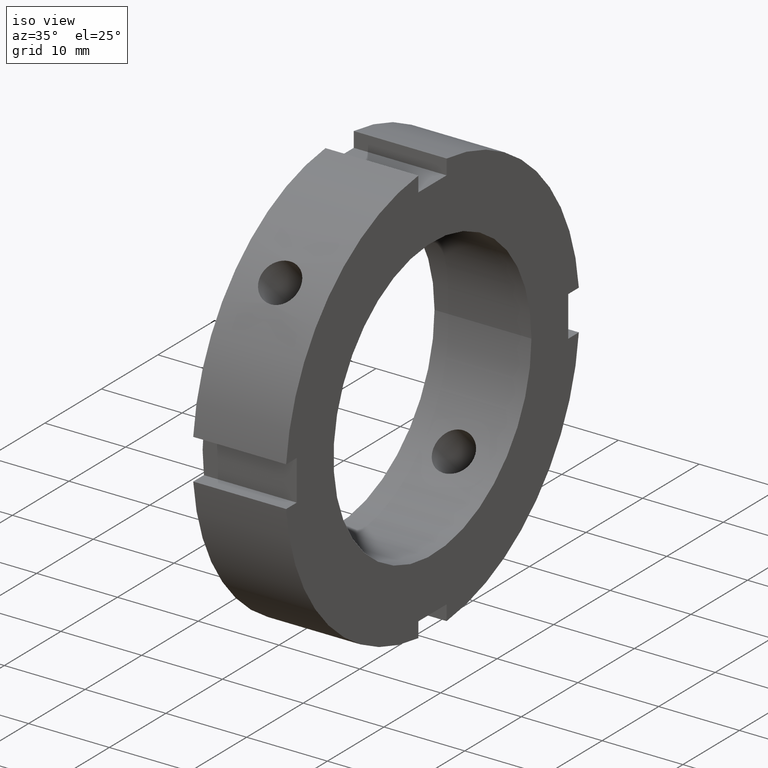
[diagram: clean part render]
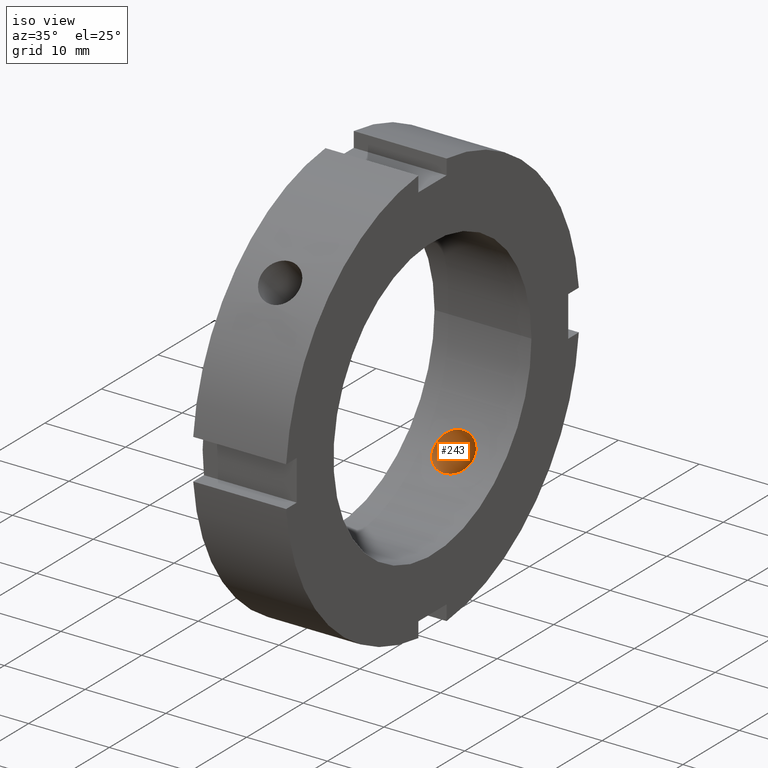
[diagram: same view with one face highlighted and labeled with its STEP entity id]
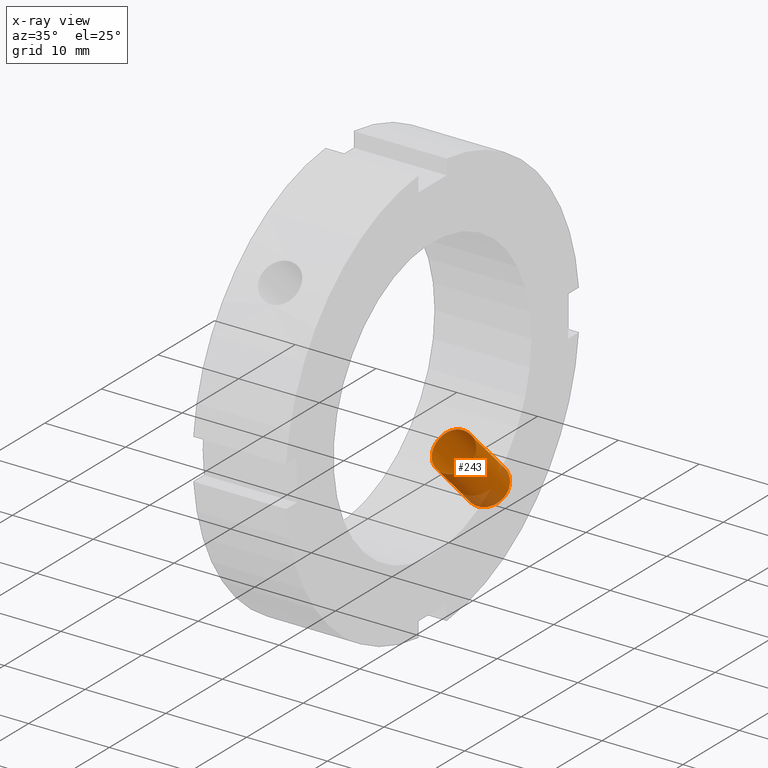
[diagram: x-ray of the same camera — body ghosted, the highlighted face saturated]
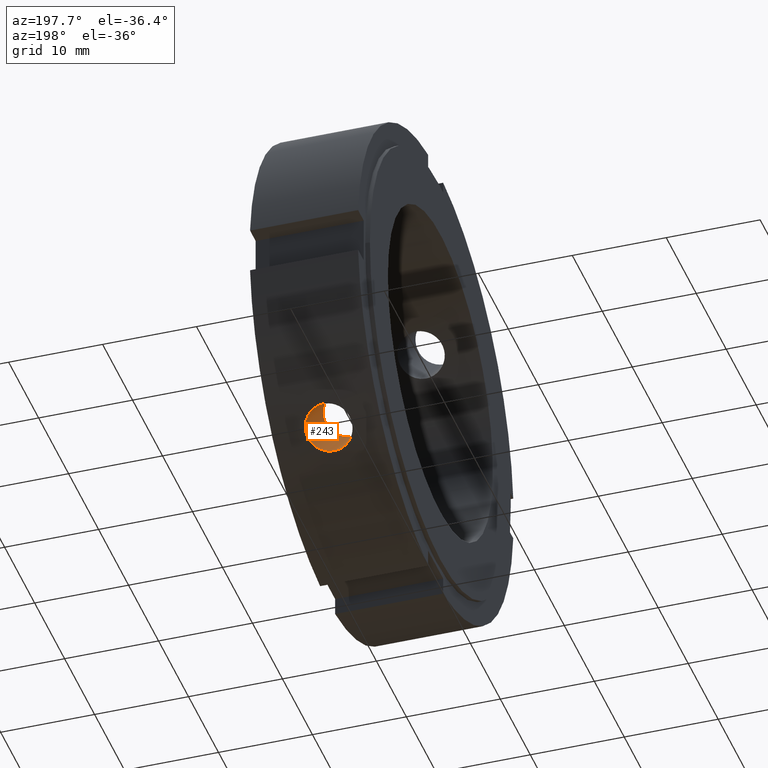
[diagram: same view with one face highlighted and labeled with its STEP entity id]
A machine part, iso view. The second image highlights one B-rep face of the part: STEP entity #243.
The next image is the same camera in x-ray: the body ghosted, the highlighted face saturated — about 13% of this face is hidden behind the body in this view.
A second angle (auxiliary view) of the same face is appended — the face is thin or edge-on in the first view.
In plain terms, the highlighted cylindrical surface (bore or boss wall) has radius 2.4585 mm, axis along (0, -0.7071, 0.7071).
Its self-contained STEP definition (entity closure, byte-faithful):
#156=CARTESIAN_POINT('',(5.999999999999996,52.449976167773436,-52.449976167773443));
#157=DIRECTION('',(0.0,-0.707106781186547,0.707106781186548));
#158=DIRECTION('',(1.0,0.0,0.0));
#159=AXIS2_PLACEMENT_3D('',#156,#157,#158);
#160=CYLINDRICAL_SURFACE('',#159,2.458500000000000);
#161=CARTESIAN_POINT('',(5.999999999999996,16.563979156303823,-20.040823199398083));
#162=VERTEX_POINT('',#161);
#163=CARTESIAN_POINT('',(5.999999999999996,16.563979156303827,-20.040823199398083));
#164=CARTESIAN_POINT('',(6.308893257330698,16.563979156303827,-20.040823199398083));
#165=CARTESIAN_POINT('',(6.638249047023850,16.611970065652923,-20.001457856660430));
#166=CARTESIAN_POINT('',(7.243917683618943,16.804983903775458,-19.839566068498726));
#167=CARTESIAN_POINT('',(7.520246305224174,16.949773224856060,-19.716820281860457));
#168=CARTESIAN_POINT('',(7.956597144780158,17.278996296276972,-19.428950078028421));
#169=CARTESIAN_POINT('',(8.145773495738521,17.485390551896462,-19.244556280755262));
#170=CARTESIAN_POINT('',(8.396730017828553,17.929175291978915,-18.831794989945770));
#171=CARTESIAN_POINT('',(8.458499999999997,18.166356387684278,-18.603196234016195));
#172=CARTESIAN_POINT('',(8.458499999999996,18.603196234016188,-18.166356387684282));
#173=CARTESIAN_POINT('',(8.396730017828556,18.831794989945763,-17.929175291978922));
#174=CARTESIAN_POINT('',(8.145773495738526,19.244556280755251,-17.485390551896469));
#175=CARTESIAN_POINT('',(7.956597144780152,19.428950078028400,-17.278996296276983));
#176=CARTESIAN_POINT('',(7.520246305224172,19.716820281860443,-16.949773224856067));
#177=CARTESIAN_POINT('',(7.243917683618943,19.839566068498723,-16.804983903775465));
#178=CARTESIAN_POINT('',(6.638249047023850,20.001457856660430,-16.611970065652926));
#179=CARTESIAN_POINT('',(6.308893257330701,20.040823199398083,-16.563979156303827));
#180=CARTESIAN_POINT('',(5.691106742669292,20.040823199398083,-16.563979156303827));
#181=CARTESIAN_POINT('',(5.361750952976142,20.001457856660430,-16.611970065652926));
#182=CARTESIAN_POINT('',(4.756082316381047,19.839566068498726,-16.804983903775465));
#183=CARTESIAN_POINT('',(4.479753694775820,19.716820281860443,-16.949773224856067));
#184=CARTESIAN_POINT('',(4.043402855219841,19.428950078028404,-17.278996296276983));
#185=CARTESIAN_POINT('',(3.854226504261468,19.244556280755255,-17.485390551896465));
#186=CARTESIAN_POINT('',(3.603269982171435,18.831794989945760,-17.929175291978918));
#187=CARTESIAN_POINT('',(3.541499999999997,18.603196234016188,-18.166356387684282));
#188=CARTESIAN_POINT('',(3.541499999999997,18.166356387684278,-18.603196234016195));
#189=CARTESIAN_POINT('',(3.603269982171439,17.929175291978911,-18.831794989945770));
#190=CARTESIAN_POINT('',(3.854226504261471,17.485390551896462,-19.244556280755258));
#191=CARTESIAN_POINT('',(4.043402855219838,17.278996296276972,-19.428950078028421));
#192=CARTESIAN_POINT('',(4.479753694775819,16.949773224856060,-19.716820281860457));
#193=CARTESIAN_POINT('',(4.756082316381050,16.804983903775458,-19.839566068498730));
#194=CARTESIAN_POINT('',(5.361750952976145,16.611970065652923,-20.001457856660437));
#195=CARTESIAN_POINT('',(5.691106742669295,16.563979156303827,-20.040823199398083));
#196=CARTESIAN_POINT('',(5.999999999999997,16.563979156303827,-20.040823199398083));
#197=B_SPLINE_CURVE_WITH_KNOTS('',3,(#163,#164,#165,#166,#167,#168,#169,#170,#171,#172,#173,#174,#175,#176,#177,#178,#179,#180,#181,#182,#183,#184,#185,#186,#187,#188,#189,#190,#191,#192,#193,#194,#195,#196),.UNSPECIFIED.,.T.,.U.,(4,2,2,2,2,2,2,2,2,2,2,2,2,2,2,2,4),(0.0,0.092667977199211,0.185335954398422,0.278003679688558,0.370671404978693,0.463339130268829,0.556006855558964,0.648674832758175,0.741342809957386,0.834010787156597,0.926678764355809,1.019346489645943,1.112014214936079,1.204681940226214,1.297349665516350,1.390017642715561,1.482685619914772),.UNSPECIFIED.);
#198=EDGE_CURVE('',#162,#162,#197,.T.);
#199=ORIENTED_EDGE('',*,*,#198,.F.);
#200=EDGE_LOOP('',(#199));
#201=FACE_OUTER_BOUND('',#200,.T.);
#202=CARTESIAN_POINT('',(5.999999999999996,10.513226393054062,-13.990070436148326));
#203=VERTEX_POINT('',#202);
#204=CARTESIAN_POINT('',(5.999999999999996,10.513226393054067,-13.990070436148326));
#205=CARTESIAN_POINT('',(5.690863632155530,10.513226393054067,-13.990070436148326));
#206=CARTESIAN_POINT('',(5.361405225262912,10.563425703158487,-13.952779678503134));
#207=CARTESIAN_POINT('',(4.755805030208885,10.764159619258212,-13.798510459345156));
#208=CARTESIAN_POINT('',(4.479627779026188,10.914334361679447,-13.681203346923002));
#209=CARTESIAN_POINT('',(4.043531095510908,11.253486232226940,-13.403621373137266));
#210=CARTESIAN_POINT('',(3.854390574057755,11.465136695736424,-13.224696436963445));
#211=CARTESIAN_POINT('',(3.603363780879410,11.916433173590782,-12.819538826253059));
#212=CARTESIAN_POINT('',(3.541499999999997,12.155779173642319,-12.592958167886842));
#213=CARTESIAN_POINT('',(3.541499999999995,12.592958167886835,-12.155779173642324));
#214=CARTESIAN_POINT('',(3.603363780879410,12.819538826253051,-11.916433173590789));
#215=CARTESIAN_POINT('',(3.854390574057753,13.224696436963434,-11.465136695736437));
#216=CARTESIAN_POINT('',(4.043531095510911,13.403621373137252,-11.253486232226955));
#217=CARTESIAN_POINT('',(4.479627779026187,13.681203346922990,-10.914334361679456));
#218=CARTESIAN_POINT('',(4.755805030208880,13.798510459345156,-10.764159619258214));
#219=CARTESIAN_POINT('',(5.361405225262907,13.952779678503134,-10.563425703158488));
#220=CARTESIAN_POINT('',(5.690863632155528,13.990070436148322,-10.513226393054065));
#221=CARTESIAN_POINT('',(6.309136367844463,13.990070436148322,-10.513226393054062));
#222=CARTESIAN_POINT('',(6.638594774737082,13.952779678503134,-10.563425703158488));
#223=CARTESIAN_POINT('',(7.244194969791112,13.798510459345156,-10.764159619258214));
#224=CARTESIAN_POINT('',(7.520372220973803,13.681203346922988,-10.914334361679456));
#225=CARTESIAN_POINT('',(7.956468904489080,13.403621373137252,-11.253486232226953));
#226=CARTESIAN_POINT('',(8.145609425942240,13.224696436963434,-11.465136695736435));
#227=CARTESIAN_POINT('',(8.396636219120584,12.819538826253050,-11.916433173590788));
#228=CARTESIAN_POINT('',(8.458499999999997,12.592958167886835,-12.155779173642323));
#229=CARTESIAN_POINT('',(8.458499999999996,12.155779173642319,-12.592958167886842));
#230=CARTESIAN_POINT('',(8.396636219120584,11.916433173590782,-12.819538826253059));
#231=CARTESIAN_POINT('',(8.145609425942237,11.465136695736424,-13.224696436963445));
#232=CARTESIAN_POINT('',(7.956468904489084,11.253486232226940,-13.403621373137266));
#233=CARTESIAN_POINT('',(7.520372220973803,10.914334361679447,-13.681203346923002));
#234=CARTESIAN_POINT('',(7.244194969791106,10.764159619258212,-13.798510459345156));
#235=CARTESIAN_POINT('',(6.638594774737081,10.563425703158487,-13.952779678503134));
#236=CARTESIAN_POINT('',(6.309136367844463,10.513226393054067,-13.990070436148326));
#237=CARTESIAN_POINT('',(5.999999999999996,10.513226393054067,-13.990070436148326));
#238=B_SPLINE_CURVE_WITH_KNOTS('',3,(#204,#205,#206,#207,#208,#209,#210,#211,#212,#213,#214,#215,#216,#217,#218,#219,#220,#221,#222,#223,#224,#225,#226,#227,#228,#229,#230,#231,#232,#233,#234,#235,#236,#237),.UNSPECIFIED.,.T.,.U.,(4,2,2,2,2,2,2,2,2,2,2,2,2,2,2,2,4),(0.0,0.092740910353340,0.185481820706680,0.278221490133464,0.370961159560247,0.463700828987030,0.556440498413813,0.649181408767153,0.741922319120494,0.834663229473834,0.927404139827175,1.020143809253957,1.112883478680740,1.205623148107524,1.298362817534307,1.391103727887648,1.483844638240988),.UNSPECIFIED.);
#239=EDGE_CURVE('',#203,#203,#238,.T.);
#240=ORIENTED_EDGE('',*,*,#239,.F.);
#241=EDGE_LOOP('',(#240));
#242=FACE_BOUND('',#241,.T.);
#243=ADVANCED_FACE('',(#201,#242),#160,.F.);